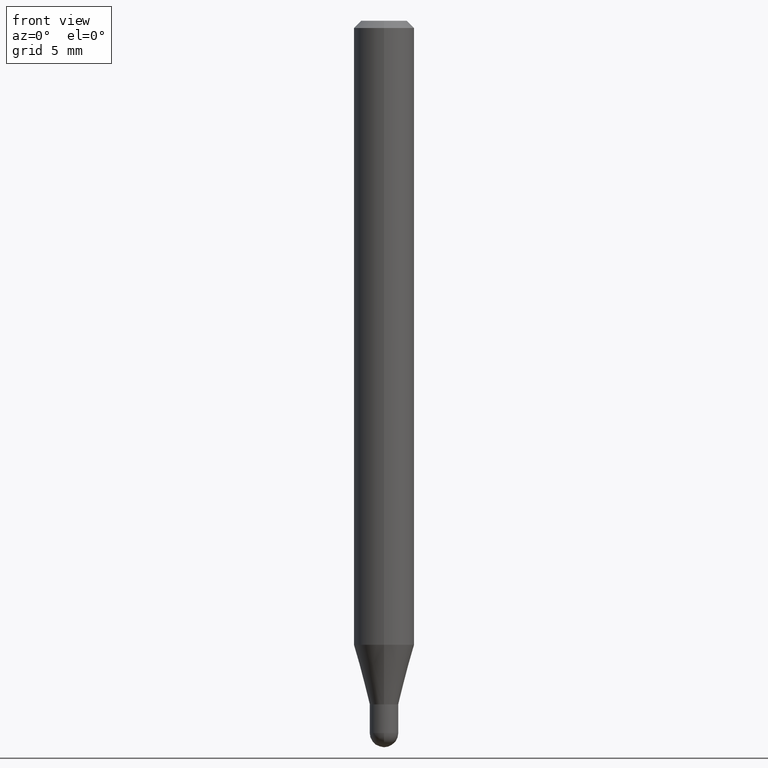
[diagram: clean part render]
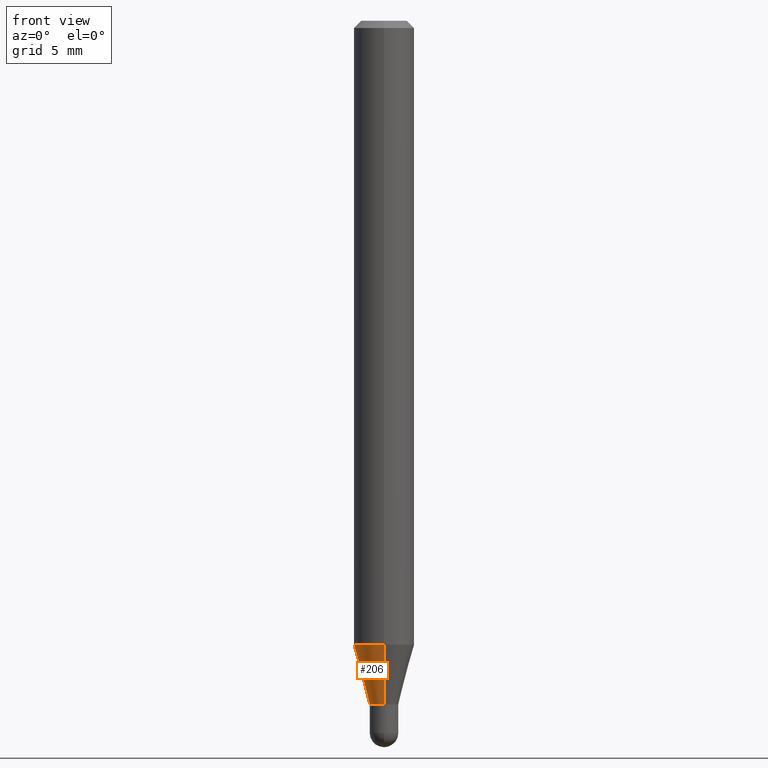
[diagram: same view with one face highlighted and labeled with its STEP entity id]
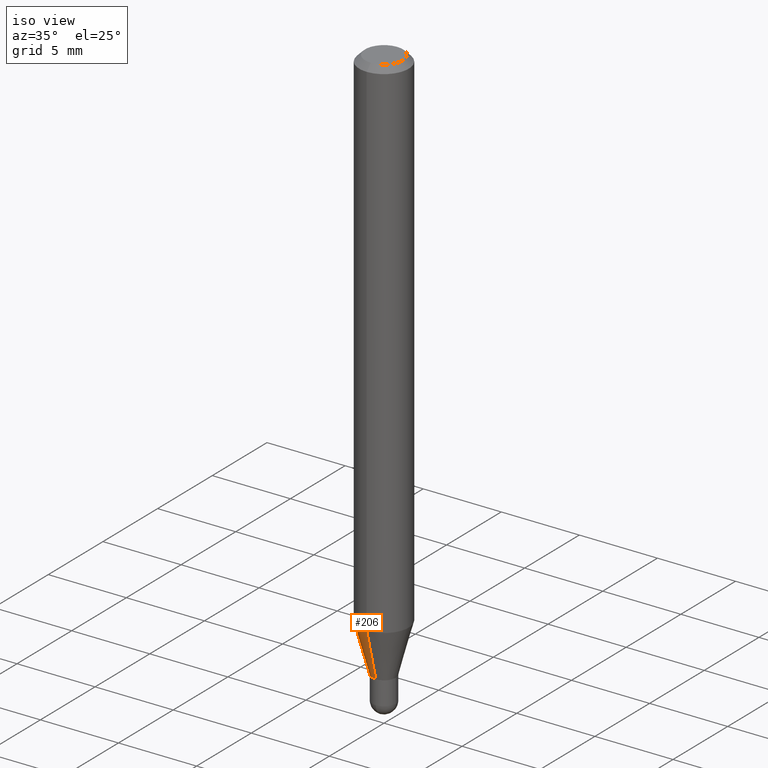
[diagram: same view with one face highlighted and labeled with its STEP entity id]
A machine part, front view. The second image highlights one B-rep face of the part: STEP entity #206.
A second angle (iso view) of the same face is appended — the face is thin or edge-on in the first view.
In plain terms, the highlighted conical surface has half-angle 15 deg.
Its self-contained STEP definition (entity closure, byte-faithful):
#13 = CARTESIAN_POINT ( 'NONE',  ( 3.451799951467078440E-29, -4.928196221036497538E-15, -1.411500000000000199 ) ) ;
#40 = DIRECTION ( 'NONE',  ( -1.807323732225378260E-15, -0.2588190451025250693, 0.9659258262890670910 ) ) ;
#44 = FACE_OUTER_BOUND ( 'NONE', #197, .T. ) ;
#49 = DIRECTION ( 'NONE',  ( -6.982962677686266711E-15, -1.000000000000000000, 0.000000000000000000 ) ) ;
#57 = DIRECTION ( 'NONE',  ( -6.982962677686266711E-15, -1.000000000000000000, 0.000000000000000000 ) ) ;
#68 = ORIENTED_EDGE ( 'NONE', *, *, #350, .T. ) ;
#73 = ORIENTED_EDGE ( 'NONE', *, *, #468, .F. ) ;
#81 = CARTESIAN_POINT ( 'NONE',  ( 4.440892098500937762E-16, 0.06249999999999547584, -1.288342323350233132 ) ) ;
#91 = AXIS2_PLACEMENT_3D ( 'NONE', #448, #94, #470 ) ;
#94 = DIRECTION ( 'NONE',  ( -2.445483493777596919E-29, 3.491460305374776460E-15, 1.000000000000000000 ) ) ;
#111 = VERTEX_POINT ( 'NONE', #196 ) ;
#112 = CARTESIAN_POINT ( 'NONE',  ( -4.364351673553603615E-16, -0.06250000000000453804, -1.288342323350232688 ) ) ;
#119 = ORIENTED_EDGE ( 'NONE', *, *, #370, .F. ) ;
#127 = DIRECTION ( 'NONE',  ( -2.445483493777596919E-29, 3.491460305374776460E-15, 1.000000000000000000 ) ) ;
#145 = VERTEX_POINT ( 'NONE', #81 ) ;
#147 = CIRCLE ( 'NONE', #91, 0.06250000000000000000 ) ;
#159 = EDGE_CURVE ( 'NONE', #111, #362, #358, .T. ) ;
#170 = CARTESIAN_POINT ( 'NONE',  ( 2.096101070492673598E-16, 0.02949999999999553674, -1.411500000000000199 ) ) ;
#172 = LINE ( 'NONE', #170, #257 ) ;
#196 = CARTESIAN_POINT ( 'NONE',  ( -2.059973989917136074E-16, -0.02950000000000539691, -1.411500000000000199 ) ) ;
#197 = EDGE_LOOP ( 'NONE', ( #73, #68, #215, #119 ) ) ;
#206 = ADVANCED_FACE ( 'NONE', ( #44 ), #275, .T. ) ;
#215 = ORIENTED_EDGE ( 'NONE', *, *, #159, .T. ) ;
#220 = VECTOR ( 'NONE', #40, 39.37007874015748854 ) ;
#250 = DIRECTION ( 'NONE',  ( 1.839019923739649225E-15, 0.2588190451025318417, 0.9659258262890653146 ) ) ;
#257 = VECTOR ( 'NONE', #250, 39.37007874015748143 ) ;
#275 = CONICAL_SURFACE ( 'NONE', #511, 0.02950000000000046682, 0.2617993877991574014 ) ;
#276 = VERTEX_POINT ( 'NONE', #348 ) ;
#311 = CARTESIAN_POINT ( 'NONE',  ( -2.059973989917136074E-16, -0.02950000000000539691, -1.411500000000000199 ) ) ;
#316 = CARTESIAN_POINT ( 'NONE',  ( 3.451799951467078440E-29, -4.928196221036497538E-15, -1.411500000000000199 ) ) ;
#348 = CARTESIAN_POINT ( 'NONE',  ( 3.268496584496807899E-16, 0.02949999999999553674, -1.411500000000000199 ) ) ;
#350 = EDGE_CURVE ( 'NONE', #276, #111, #400, .T. ) ;
#358 = LINE ( 'NONE', #311, #220 ) ;
#362 = VERTEX_POINT ( 'NONE', #112 ) ;
#366 = AXIS2_PLACEMENT_3D ( 'NONE', #13, #414, #57 ) ;
#370 = EDGE_CURVE ( 'NONE', #145, #362, #147, .T. ) ;
#400 = CIRCLE ( 'NONE', #366, 0.02950000000000046682 ) ;
#414 = DIRECTION ( 'NONE',  ( -2.445483493777596919E-29, 3.491460305374776460E-15, 1.000000000000000000 ) ) ;
#448 = CARTESIAN_POINT ( 'NONE',  ( 3.150619886088074445E-29, -4.498196081711653353E-15, -1.288342323350232910 ) ) ;
#468 = EDGE_CURVE ( 'NONE', #276, #145, #172, .T. ) ;
#470 = DIRECTION ( 'NONE',  ( -6.982962677686265922E-15, -1.000000000000000000, 4.370956789862821150E-15 ) ) ;
#511 = AXIS2_PLACEMENT_3D ( 'NONE', #316, #127, #49 ) ;